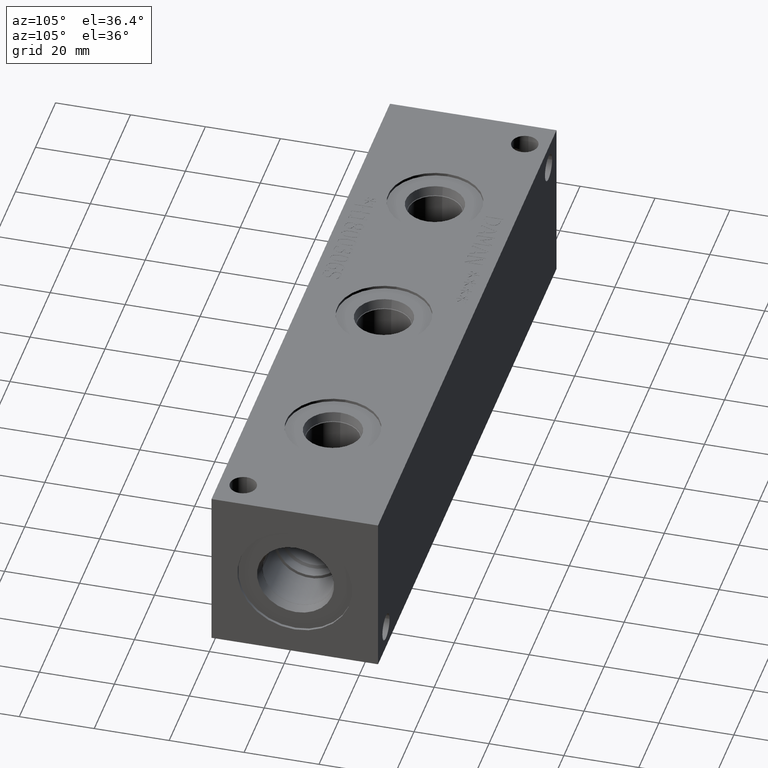
[diagram: clean part render]
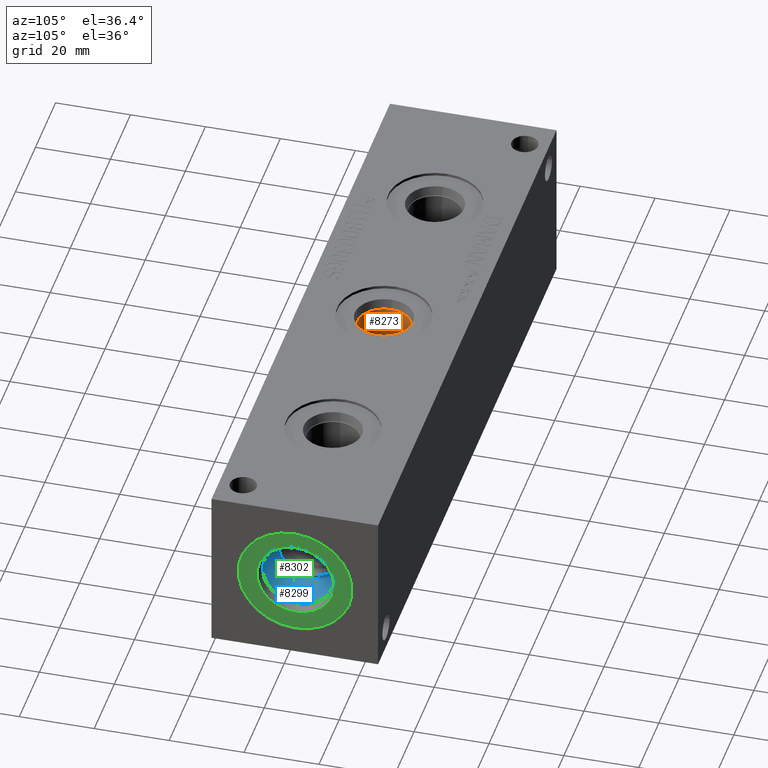
[diagram: same view with three faces highlighted in distinct colors, each labeled with its STEP entity id]
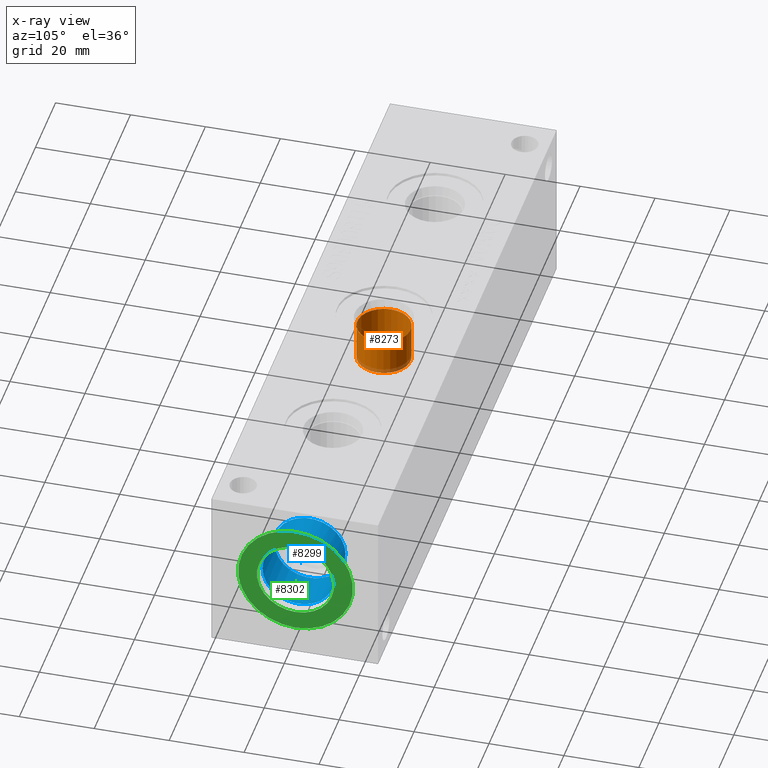
[diagram: x-ray of the same camera — body ghosted, the three highlighted faces saturated]
A machine part, auxiliary view with three faces highlighted in distinct colors.
The next image is the same camera in x-ray (body ghosted, the three faces saturated) — at least one of them is partly hidden behind the body in this view.
Their STEP definitions:

[orange] entity #8273 — the highlighted cylindrical surface (bore or boss wall) has radius 7.1374 mm, axis along (0, 0, 1).
#81=CYLINDRICAL_SURFACE('',#8702,7.1374);
#197=CIRCLE('',#8699,7.1374);
#198=CIRCLE('',#8700,7.1374);
#200=CIRCLE('',#8703,7.1374);
#937=FACE_OUTER_BOUND('',#1405,.T.);
#1405=EDGE_LOOP('',(#7198,#7199,#7200,#7201,#7202));
#2177=LINE('',#14204,#2924);
#2924=VECTOR('',#10262,7.1374);
#3901=VERTEX_POINT('',#14195);
#3902=VERTEX_POINT('',#14196);
#3904=VERTEX_POINT('',#14202);
#5023=EDGE_CURVE('',#3901,#3902,#197,.T.);
#5024=EDGE_CURVE('',#3902,#3901,#198,.T.);
#5026=EDGE_CURVE('',#3904,#3904,#200,.T.);
#5027=EDGE_CURVE('',#3904,#3902,#2177,.T.);
#7198=ORIENTED_EDGE('',*,*,#5026,.F.);
#7199=ORIENTED_EDGE('',*,*,#5027,.T.);
#7200=ORIENTED_EDGE('',*,*,#5023,.F.);
#7201=ORIENTED_EDGE('',*,*,#5024,.F.);
#7202=ORIENTED_EDGE('',*,*,#5027,.F.);
#8273=ADVANCED_FACE('',(#937),#81,.F.);
#8699=AXIS2_PLACEMENT_3D('',#14197,#10252,#10253);
#8700=AXIS2_PLACEMENT_3D('',#14198,#10254,#10255);
#8702=AXIS2_PLACEMENT_3D('',#14201,#10258,#10259);
#8703=AXIS2_PLACEMENT_3D('',#14203,#10260,#10261);
#10252=DIRECTION('center_axis',(0.,0.,1.));
#10253=DIRECTION('ref_axis',(1.,0.,0.));
#10254=DIRECTION('center_axis',(0.,0.,1.));
#10255=DIRECTION('ref_axis',(1.,0.,0.));
#10258=DIRECTION('center_axis',(0.,0.,1.));
#10259=DIRECTION('ref_axis',(1.,0.,0.));
#10260=DIRECTION('center_axis',(0.,0.,-1.));
#10261=DIRECTION('ref_axis',(1.,0.,0.));
#10262=DIRECTION('',(0.,0.,-1.));
#14195=CARTESIAN_POINT('',(96.0374,22.225,30.9626));
#14196=CARTESIAN_POINT('',(81.7626,22.225,30.9626));
#14197=CARTESIAN_POINT('Origin',(88.9,22.225,30.9626));
#14198=CARTESIAN_POINT('Origin',(88.9,22.225,30.9626));
#14201=CARTESIAN_POINT('Origin',(88.9,22.225,37.7063));
#14202=CARTESIAN_POINT('',(81.7626,22.225,41.021));
#14203=CARTESIAN_POINT('Origin',(88.9,22.225,41.021));
#14204=CARTESIAN_POINT('',(81.7626,22.225,37.7063));

[blue] entity #8299 — the highlighted cylindrical surface (bore or boss wall) has radius 9.525 mm, axis along (1, 0, 0).
#93=CYLINDRICAL_SURFACE('',#8767,9.525);
#236=CIRCLE('',#8764,9.525);
#237=CIRCLE('',#8765,9.525);
#239=CIRCLE('',#8768,9.525);
#240=CIRCLE('',#8769,9.525);
#963=FACE_OUTER_BOUND('',#1436,.T.);
#1436=EDGE_LOOP('',(#7325,#7326,#7327,#7328,#7329,#7330));
#2198=LINE('',#14331,#2945);
#2945=VECTOR('',#10413,9.525);
#3941=VERTEX_POINT('',#14321);
#3942=VERTEX_POINT('',#14322);
#3944=VERTEX_POINT('',#14328);
#3945=VERTEX_POINT('',#14329);
#5083=EDGE_CURVE('',#3941,#3942,#236,.T.);
#5084=EDGE_CURVE('',#3942,#3941,#237,.T.);
#5086=EDGE_CURVE('',#3944,#3945,#239,.T.);
#5087=EDGE_CURVE('',#3944,#3942,#2198,.T.);
#5088=EDGE_CURVE('',#3945,#3944,#240,.T.);
#7325=ORIENTED_EDGE('',*,*,#5086,.F.);
#7326=ORIENTED_EDGE('',*,*,#5087,.T.);
#7327=ORIENTED_EDGE('',*,*,#5083,.F.);
#7328=ORIENTED_EDGE('',*,*,#5084,.F.);
#7329=ORIENTED_EDGE('',*,*,#5087,.F.);
#7330=ORIENTED_EDGE('',*,*,#5088,.F.);
#8299=ADVANCED_FACE('',(#963),#93,.F.);
#8764=AXIS2_PLACEMENT_3D('',#14323,#10403,#10404);
#8765=AXIS2_PLACEMENT_3D('',#14324,#10405,#10406);
#8767=AXIS2_PLACEMENT_3D('',#14327,#10409,#10410);
#8768=AXIS2_PLACEMENT_3D('',#14330,#10411,#10412);
#8769=AXIS2_PLACEMENT_3D('',#14332,#10414,#10415);
#10403=DIRECTION('center_axis',(1.,0.,0.));
#10404=DIRECTION('ref_axis',(0.,1.,0.));
#10405=DIRECTION('center_axis',(1.,0.,0.));
#10406=DIRECTION('ref_axis',(0.,1.,0.));
#10409=DIRECTION('center_axis',(1.,0.,0.));
#10410=DIRECTION('ref_axis',(0.,1.,0.));
#10411=DIRECTION('center_axis',(-1.,0.,0.));
#10412=DIRECTION('ref_axis',(0.,1.,0.));
#10413=DIRECTION('',(-1.,0.,0.));
#10414=DIRECTION('center_axis',(-1.,0.,0.));
#10415=DIRECTION('ref_axis',(0.,1.,0.));
#14321=CARTESIAN_POINT('',(162.7378,31.75,22.225));
#14322=CARTESIAN_POINT('',(162.7378,12.7,22.225));
#14323=CARTESIAN_POINT('Origin',(162.7378,22.225,22.225));
#14324=CARTESIAN_POINT('Origin',(162.7378,22.225,22.225));
#14327=CARTESIAN_POINT('Origin',(170.2689,22.225,22.225));
#14328=CARTESIAN_POINT('',(174.3964,12.7,22.225));
#14329=CARTESIAN_POINT('',(174.3964,22.225,31.75));
#14330=CARTESIAN_POINT('Origin',(174.3964,22.225,22.225));
#14331=CARTESIAN_POINT('',(170.2689,12.7,22.225));
#14332=CARTESIAN_POINT('Origin',(174.3964,22.225,22.225));

[green] entity #8302 — the highlighted planar face has unit normal (-1, 0, 0).
#243=CIRCLE('',#8774,15.3162);
#244=CIRCLE('',#8775,15.3162);
#245=CIRCLE('',#8777,10.2997);
#246=CIRCLE('',#8778,10.2997);
#317=FACE_BOUND('',#1440,.T.);
#551=PLANE('',#8776);
#966=FACE_OUTER_BOUND('',#1439,.T.);
#1439=EDGE_LOOP('',(#7342,#7343));
#1440=EDGE_LOOP('',(#7344,#7345));
#3948=VERTEX_POINT('',#14340);
#3949=VERTEX_POINT('',#14342);
#3950=VERTEX_POINT('',#14346);
#3951=VERTEX_POINT('',#14347);
#5093=EDGE_CURVE('',#3948,#3949,#243,.T.);
#5094=EDGE_CURVE('',#3949,#3948,#244,.T.);
#5095=EDGE_CURVE('',#3950,#3951,#245,.T.);
#5096=EDGE_CURVE('',#3951,#3950,#246,.T.);
#7342=ORIENTED_EDGE('',*,*,#5094,.F.);
#7343=ORIENTED_EDGE('',*,*,#5093,.F.);
#7344=ORIENTED_EDGE('',*,*,#5095,.T.);
#7345=ORIENTED_EDGE('',*,*,#5096,.T.);
#8302=ADVANCED_FACE('',(#966,#317),#551,.F.);
#8774=AXIS2_PLACEMENT_3D('',#14343,#10426,#10427);
#8775=AXIS2_PLACEMENT_3D('',#14344,#10428,#10429);
#8776=AXIS2_PLACEMENT_3D('',#14345,#10430,#10431);
#8777=AXIS2_PLACEMENT_3D('',#14348,#10432,#10433);
#8778=AXIS2_PLACEMENT_3D('',#14349,#10434,#10435);
#10426=DIRECTION('center_axis',(-1.,0.,0.));
#10427=DIRECTION('ref_axis',(0.,0.,1.));
#10428=DIRECTION('center_axis',(-1.,0.,0.));
#10429=DIRECTION('ref_axis',(0.,0.,1.));
#10430=DIRECTION('center_axis',(-1.,0.,0.));
#10431=DIRECTION('ref_axis',(0.,0.,1.));
#10432=DIRECTION('center_axis',(-1.,0.,0.));
#10433=DIRECTION('ref_axis',(0.,0.,1.));
#10434=DIRECTION('center_axis',(-1.,0.,0.));
#10435=DIRECTION('ref_axis',(0.,0.,1.));
#14340=CARTESIAN_POINT('',(177.0126,22.225,37.5412));
#14342=CARTESIAN_POINT('',(177.0126,22.225,6.9088));
#14343=CARTESIAN_POINT('Origin',(177.0126,22.225,22.225));
#14344=CARTESIAN_POINT('Origin',(177.0126,22.225,22.225));
#14345=CARTESIAN_POINT('Origin',(177.0126,22.225,11.9253));
#14346=CARTESIAN_POINT('',(177.0126,22.225,11.9253));
#14347=CARTESIAN_POINT('',(177.0126,22.225,32.5247));
#14348=CARTESIAN_POINT('Origin',(177.0126,22.225,22.225));
#14349=CARTESIAN_POINT('Origin',(177.0126,22.225,22.225));